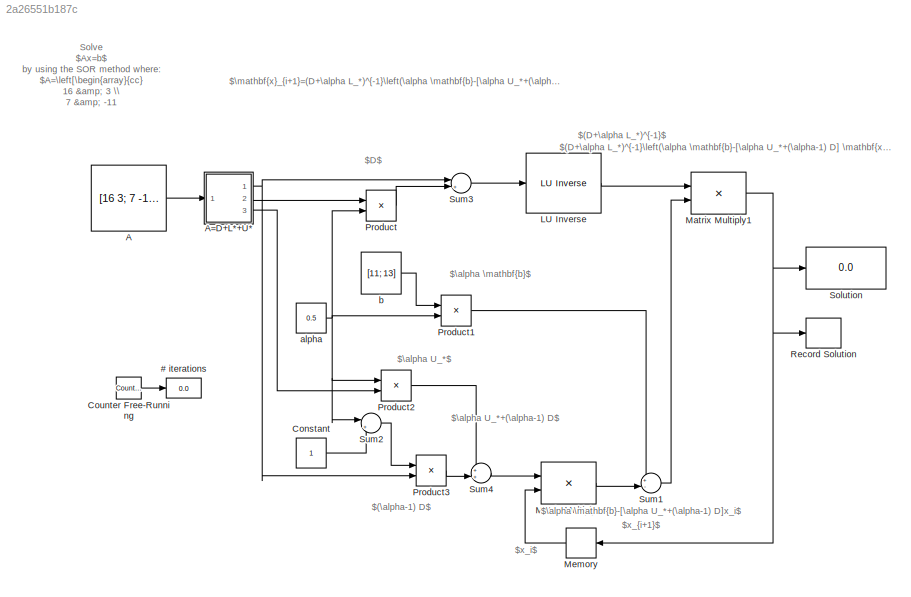
MODEL slx_2a26551b187c
KIND model
CONFIG AbsTol = auto
CONFIG EnableMultiTasking = off
CONFIG FixedStep = 1
CONFIG MaxStep = auto
CONFIG MinStep = auto
CONFIG RelTol = 1e-3
CONFIG SampleTimeConstraint = Unconstrained
CONFIG SolverName = FixedStepDiscrete
CONFIG StartTime = 0.0
CONFIG StopTime = 10
BLOCK [Reference]  LU Inverse  REF=dspinverses/ LU Inverse
  Ports = [1, 1]
  SourceBlock = dspinverses/ LU Inverse
  SourceProductBaseCode = DS
  SourceType = LU Inverse
BLOCK [Display] # iterations
  Decimation = 1
  Ports = [1]
BLOCK [Constant] A
  Value = [16 3; 7 -11]
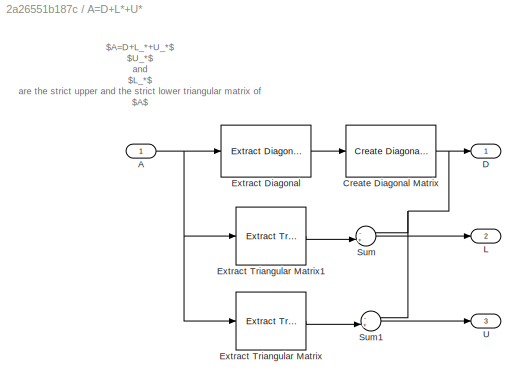
BLOCK [SubSystem] A=D+L*+U*
  Ports = [1, 3]
  RequestExecContextInheritance = off
BLOCK [Inport] A=D+L*+U*/A
BLOCK [Reference] A=D+L*+U*/Create Diagonal Matrix  REF=dspmtrx3/Create Diagonal
Matrix
  Ports = [1, 1]
  SourceBlock = dspmtrx3/Create Diagonal\nMatrix
  SourceProductBaseCode = DS
  SourceType = Create Diagonal Matrix
BLOCK [Outport] A=D+L*+U*/D
BLOCK [Reference] A=D+L*+U*/Extract Diagonal  REF=dspmtrx3/Extract Diagonal
  Ports = [1, 1]
  SourceBlock = dspmtrx3/Extract Diagonal
  SourceProductBaseCode = DS
  SourceType = Extract Diagonal
BLOCK [Reference] A=D+L*+U*/Extract Triangular Matrix  REF=dspmtrx3/Extract Triangular
Matrix
  Ports = [1, 1]
  SourceBlock = dspmtrx3/Extract Triangular\nMatrix
  SourceProductBaseCode = DS
  SourceType = dsp.simulink.ExtractTriangularMatrix
BLOCK [Reference] A=D+L*+U*/Extract Triangular Matrix1  REF=dspmtrx3/Extract Triangular
Matrix
  Ports = [1, 1]
  SourceBlock = dspmtrx3/Extract Triangular\nMatrix
  SourceProductBaseCode = DS
  SourceType = dsp.simulink.ExtractTriangularMatrix
BLOCK [Outport] A=D+L*+U*/L
  Port = 2
BLOCK [Sum] A=D+L*+U*/Sum
  Inputs = -+|
  Ports = [2, 1]
BLOCK [Sum] A=D+L*+U*/Sum1
  Inputs = -+|
  Ports = [2, 1]
BLOCK [Outport] A=D+L*+U*/U
  Port = 3
BLOCK [Constant] Constant
BLOCK [Reference] Counter Free-Running  REF=simulink/Sources/Counter
Free-Running
  Ports = [0, 1]
  SourceBlock = simulink/Sources/Counter\nFree-Running
  SourceProductBaseCode = SL
  SourceType = Counter Free-Running
BLOCK [Product] Matrix Multiply1
  Multiplication = Matrix(*)
  Ports = [2, 1]
BLOCK [Product] Matrix Multiply2
  Multiplication = Matrix(*)
  Ports = [2, 1]
BLOCK [Memory] Memory
  InitialCondition = [1; 1]
  NameLocation = top
BLOCK [Product] Product
  Ports = [2, 1]
BLOCK [Product] Product1
  Ports = [2, 1]
BLOCK [Product] Product2
  Ports = [2, 1]
BLOCK [Product] Product3
  Ports = [2, 1]
BLOCK [Record] Record Solution
  FileSettingsInternal = {"entries":[{"content":{"excelSettings":{"content":{},"type":"Streamout.ExcelSettings"}},"type":"Streamout.FileSettingStorage","uuid":"443e61f6-5447-4ec9-a7f4-f5e5c8be4017"}],"packageUris":["http://schema.mathworks.com/mf0/streamout_blocks/R2020a"],"version":"1.0"}
  Layout = [1 1]
  Ports = [1]
  SignalsInternal = {"entries":[{"content":{"signals":[{"content":{"blockPath":["xuccessive_over_relaxation/Record Solution"],"channel":[],"dimensions":[2,1],"domain":"xuccessive_over_relaxation/record solution","hasChildren":true,"lineColor":"#0072bd","plots":[],"port":1,"sid":[""],"signalID":303,"signalName":"Matrix Multiply1"},"type":"RecordBlkView.Signal","uuid":"02c71bc3-add5-43f9-ba33-aa2eabd385ab"},{"content":...<+519ch>
  VisualizationBindings = {"sparklinesplugin":{"info":[{"bindingParametersList":[],"subplotID":1}]}}
BLOCK [Display] Solution
  Decimation = 1
  Ports = [1]
BLOCK [Sum] Sum1
  Inputs = +-|
  Ports = [2, 1]
BLOCK [Sum] Sum2
  Inputs = |+-
  Ports = [2, 1]
BLOCK [Sum] Sum3
  Inputs = |++
  Ports = [2, 1]
BLOCK [Sum] Sum4
  Inputs = ++|
  Ports = [2, 1]
BLOCK [Constant] alpha
  Value = 0.5
BLOCK [Constant] b
  Value = [11; 13]
  VectorParams1D = off
ANNOTATION (root): $(D+\alpha L_*)^{-1}$
ANNOTATION (root): $(D+\alpha L_*)^{-1}\left(\alpha \mathbf{b}-[\alpha U_*+(\alpha-1) D] \mathbf{x}_{i}\right)$
ANNOTATION (root): $(\alpha-1) D$
ANNOTATION (root): $D$
ANNOTATION (root): $\alpha U_*$
ANNOTATION (root): $\alpha U_*+(\alpha-1) D$
ANNOTATION (root): $\alpha \mathbf{b}$
ANNOTATION (root): $\alpha \mathbf{b}-[\alpha U_*+(\alpha-1) D]x_i$
ANNOTATION (root): $\mathbf{x}_{i+1}=(D+\alpha L_*)^{-1}\left(\alpha \mathbf{b}-[\alpha U_*+(\alpha-1) D] \mathbf{x}_{i}\right)$
ANNOTATION (root): $x_i$
ANNOTATION (root): $x_{i+1}$
ANNOTATION (root): Solve $Ax=b$ by using the SOR method where: $A=\left[\begin{array}{cc} 16 & 3 \\ 7 & -11 \end{array}\right] \text { and } b=\left[\begin{array}{c} 11 \\ 13 \end{array}\right]$ Initial guess is: $x_{0}=\left[\begin{array}{l} 1.0 \\ 1.0 \end{array}\right]$ Set $\alpha=0.5$
ANNOTATION A=D+L*+U*: $A=D+L_*+U_*$ $U_*$ and $L_*$ are the strict upper and the strict lower triangular matrix of $A$ , respectively. $D$ is the diagonal matrix of $A$
LINE  LU Inverse:1 -> Matrix Multiply1:1
LINE A:1 -> A=D+L*+U*:1
NET A=D+L*+U*/A:1 -> A=D+L*+U*/Extract Diagonal:1, A=D+L*+U*/Extract Triangular Matrix1:1, A=D+L*+U*/Extract Triangular Matrix:1
NET A=D+L*+U*/Create Diagonal Matrix:1 -> A=D+L*+U*/D:1, A=D+L*+U*/Sum1:1, A=D+L*+U*/Sum:1
LINE A=D+L*+U*/Extract Diagonal:1 -> A=D+L*+U*/Create Diagonal Matrix:1
LINE A=D+L*+U*/Extract Triangular Matrix1:1 -> A=D+L*+U*/Sum:2
LINE A=D+L*+U*/Extract Triangular Matrix:1 -> A=D+L*+U*/Sum1:2
LINE A=D+L*+U*/Sum1:1 -> A=D+L*+U*/U:1
LINE A=D+L*+U*/Sum:1 -> A=D+L*+U*/L:1
NET A=D+L*+U*:1 -> Product3:2, Sum3:1
LINE A=D+L*+U*:2 -> Product:1
LINE A=D+L*+U*:3 -> Product2:2
LINE Constant:1 -> Sum2:2
LINE Counter Free-Running:1 -> # iterations:1
NET Matrix Multiply1:1 -> Memory:1, Record Solution:1, Solution:1
LINE Matrix Multiply2:1 -> Sum1:2
LINE Memory:1 -> Matrix Multiply2:2
LINE Product1:1 -> Sum1:1
LINE Product2:1 -> Sum4:1
LINE Product3:1 -> Sum4:2
LINE Product:1 -> Sum3:2
LINE Sum1:1 -> Matrix Multiply1:2
LINE Sum2:1 -> Product3:1
LINE Sum3:1 ->  LU Inverse:1
LINE Sum4:1 -> Matrix Multiply2:1
NET alpha:1 -> Product1:2, Product2:1, Product:2, Sum2:1
LINE b:1 -> Product1:1
note: NET lines group one-source signal fan-out (src -> all destinations, sorted); 1:1 wires keep LINE
